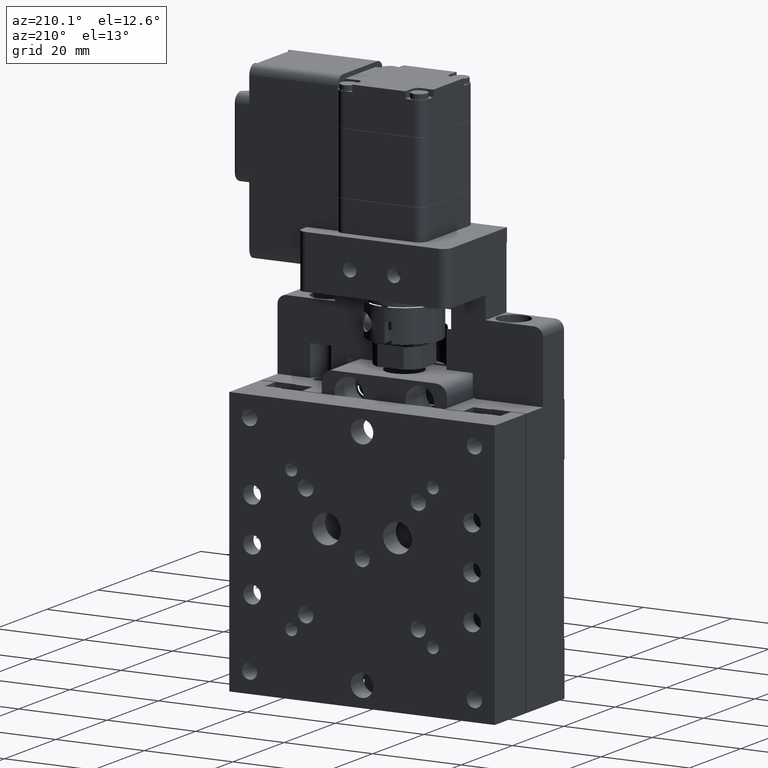
[diagram: clean part render]
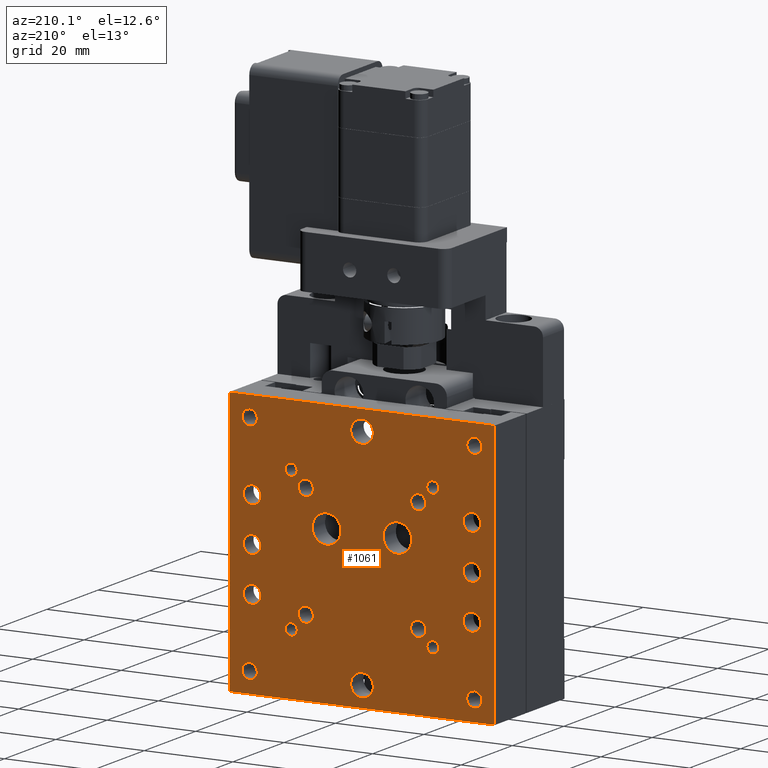
[diagram: same view with one face highlighted and labeled with its STEP entity id]
A machine part, auxiliary view. The second image highlights one B-rep face of the part: STEP entity #1061.
In plain terms, the highlighted planar face has unit normal (0, -1, 0).
Its self-contained STEP definition (entity closure, byte-faithful):
#64 = CARTESIAN_POINT ( 'NONE',  ( 10.10828040119246800, 14.10181245401396000, 49.79999999999999000 ) ) ;
#66 = DIRECTION ( 'NONE',  ( -1.000000000000000000, -1.156482317317871500E-016, 0.0000000000000000000 ) ) ;
#94 = CARTESIAN_POINT ( 'NONE',  ( 22.80828040119247300, 14.10181245401396100, 37.09999999999998700 ) ) ;
#146 = CARTESIAN_POINT ( 'NONE',  ( 27.40828040119247100, 14.10181245401396100, 92.50000000000000000 ) ) ;
#296 = DIRECTION ( 'NONE',  ( -0.0000000000000000000, 1.000000000000000000, -0.0000000000000000000 ) ) ;
#335 = DIRECTION ( 'NONE',  ( 0.0000000000000000000, 0.0000000000000000000, 1.000000000000000000 ) ) ;
#354 = EDGE_CURVE ( 'NONE', #18640, #4693, #12430, .T. ) ;
#380 = DIRECTION ( 'NONE',  ( -0.0000000000000000000, 1.000000000000000000, -0.0000000000000000000 ) ) ;
#394 = CARTESIAN_POINT ( 'NONE',  ( -27.99171959880753100, 14.10181245401395400, 37.09999999999999400 ) ) ;
#438 = AXIS2_PLACEMENT_3D ( 'NONE', #2278, #5836, #9517 ) ;
#485 = EDGE_LOOP ( 'NONE', ( #8663, #18839 ) ) ;
#518 = DIRECTION ( 'NONE',  ( -0.0000000000000000000, 1.000000000000000000, -0.0000000000000000000 ) ) ;
#538 = DIRECTION ( 'NONE',  ( -0.0000000000000000000, 1.000000000000000000, -0.0000000000000000000 ) ) ;
#552 = DIRECTION ( 'NONE',  ( -0.0000000000000000000, 1.000000000000000000, -0.0000000000000000000 ) ) ;
#788 = CIRCLE ( 'NONE', #15092, 2.000000000000001800 ) ;
#799 = ORIENTED_EDGE ( 'NONE', *, *, #22885, .F. ) ;
#804 = FACE_BOUND ( 'NONE', #12947, .T. ) ;
#821 = CARTESIAN_POINT ( 'NONE',  ( 22.25828040119247600, 14.10181245401396100, 52.49999999999999300 ) ) ;
#883 = AXIS2_PLACEMENT_3D ( 'NONE', #15247, #20374, #13442 ) ;
#897 = AXIS2_PLACEMENT_3D ( 'NONE', #9203, #3953, #335 ) ;
#1029 = DIRECTION ( 'NONE',  ( -0.0000000000000000000, 1.000000000000000000, -0.0000000000000000000 ) ) ;
#1059 = CARTESIAN_POINT ( 'NONE',  ( 10.10828040119246800, 14.10181245401396000, 75.19999999999998900 ) ) ;
#1061 = ADVANCED_FACE ( 'NONE', ( #19615, #20179, #21548, #17965, #14903, #15441, #1618, #8534, #14345, #7972, #15163, #19893, #10160, #11850, #3558, #21836, #7721, #2731, #16279, #804, #12107, #6324, #11566, #7158 ), #18908, .F. ) ;
#1078 = VERTEX_POINT ( 'NONE', #10514 ) ;
#1101 = EDGE_CURVE ( 'NONE', #8909, #16919, #7431, .T. ) ;
#1137 = AXIS2_PLACEMENT_3D ( 'NONE', #9031, #2099, #16237 ) ;
#1150 = CARTESIAN_POINT ( 'NONE',  ( -10.59171959880753300, 14.10181245401395600, 67.49999999999998600 ) ) ;
#1174 = VERTEX_POINT ( 'NONE', #14237 ) ;
#1278 = CARTESIAN_POINT ( 'NONE',  ( 22.25828040119247600, 14.10181245401396100, 52.49999999999999300 ) ) ;
#1324 = CIRCLE ( 'NONE', #5032, 1.352549999999994100 ) ;
#1431 = AXIS2_PLACEMENT_3D ( 'NONE', #1707, #3628, #1779 ) ;
#1483 = AXIS2_PLACEMENT_3D ( 'NONE', #22009, #6289, #16795 ) ;
#1542 = DIRECTION ( 'NONE',  ( -0.0000000000000000000, -0.0000000000000000000, -1.000000000000000000 ) ) ;
#1618 = FACE_BOUND ( 'NONE', #3620, .T. ) ;
#1663 = AXIS2_PLACEMENT_3D ( 'NONE', #21785, #380, #2152 ) ;
#1697 = DIRECTION ( 'NONE',  ( 0.0000000000000000000, 0.0000000000000000000, 1.000000000000000000 ) ) ;
#1707 = CARTESIAN_POINT ( 'NONE',  ( -10.59171959880753300, 14.10181245401395600, 67.49999999999998600 ) ) ;
#1779 = DIRECTION ( 'NONE',  ( 0.0000000000000000000, 0.0000000000000000000, 1.000000000000000000 ) ) ;
#1845 = DIRECTION ( 'NONE',  ( -0.0000000000000000000, 1.000000000000000000, -0.0000000000000000000 ) ) ;
#1847 = ORIENTED_EDGE ( 'NONE', *, *, #22073, .F. ) ;
#1865 = AXIS2_PLACEMENT_3D ( 'NONE', #14479, #3889, #12834 ) ;
#1886 = DIRECTION ( 'NONE',  ( -0.0000000000000000000, 1.000000000000000000, -0.0000000000000000000 ) ) ;
#1989 = EDGE_CURVE ( 'NONE', #7228, #6220, #6208, .T. ) ;
#2000 = EDGE_LOOP ( 'NONE', ( #17926, #10627 ) ) ;
#2099 = DIRECTION ( 'NONE',  ( -0.0000000000000000000, 1.000000000000000000, -0.0000000000000000000 ) ) ;
#2140 = ORIENTED_EDGE ( 'NONE', *, *, #22042, .F. ) ;
#2152 = DIRECTION ( 'NONE',  ( 0.0000000000000000000, 0.0000000000000000000, 1.000000000000000000 ) ) ;
#2278 = CARTESIAN_POINT ( 'NONE',  ( 22.25828040119247600, 14.10181245401396100, 62.49999999999999300 ) ) ;
#2289 = DIRECTION ( 'NONE',  ( 0.0000000000000000000, 0.0000000000000000000, 1.000000000000000000 ) ) ;
#2306 = ORIENTED_EDGE ( 'NONE', *, *, #4036, .F. ) ;
#2317 = EDGE_CURVE ( 'NONE', #11113, #18616, #21407, .T. ) ;
#2394 = CARTESIAN_POINT ( 'NONE',  ( -27.44171959880754500, 14.10181245401395400, 64.49999999999998600 ) ) ;
#2421 = CARTESIAN_POINT ( 'NONE',  ( -15.29171959880753000, 14.10181245401395600, 75.19999999999998900 ) ) ;
#2605 = ORIENTED_EDGE ( 'NONE', *, *, #4107, .F. ) ;
#2713 = CARTESIAN_POINT ( 'NONE',  ( 22.25828040119247600, 14.10181245401396100, 54.49999999999999300 ) ) ;
#2715 = CIRCLE ( 'NONE', #7983, 1.727199999999998100 ) ;
#2731 = FACE_BOUND ( 'NONE', #6490, .T. ) ;
#2746 = CIRCLE ( 'NONE', #10319, 1.352549999999994100 ) ;
#2819 = EDGE_CURVE ( 'NONE', #17115, #19973, #15818, .T. ) ;
#2919 = VERTEX_POINT ( 'NONE', #9435 ) ;
#2984 = CARTESIAN_POINT ( 'NONE',  ( 13.40828040119246900, 14.10181245401396000, 46.49999999999999300 ) ) ;
#3006 = EDGE_LOOP ( 'NONE', ( #3567, #9687 ) ) ;
#3054 = CARTESIAN_POINT ( 'NONE',  ( 22.80828040119247300, 14.10181245401396100, 35.37279999999999100 ) ) ;
#3179 = EDGE_CURVE ( 'NONE', #3348, #8885, #6686, .T. ) ;
#3184 = DIRECTION ( 'NONE',  ( 0.0000000000000000000, 0.0000000000000000000, 1.000000000000000000 ) ) ;
#3188 = EDGE_LOOP ( 'NONE', ( #14151, #1847 ) ) ;
#3199 = EDGE_CURVE ( 'NONE', #8885, #3348, #8065, .T. ) ;
#3202 = CARTESIAN_POINT ( 'NONE',  ( -27.99171959880752800, 14.10181245401395400, 87.89999999999999100 ) ) ;
#3223 = CARTESIAN_POINT ( 'NONE',  ( 22.80828040119247300, 14.10181245401396100, 37.09999999999998700 ) ) ;
#3291 = CARTESIAN_POINT ( 'NONE',  ( -27.44171959880754500, 14.10181245401395400, 62.49999999999999300 ) ) ;
#3301 = ORIENTED_EDGE ( 'NONE', *, *, #20282, .F. ) ;
#3348 = VERTEX_POINT ( 'NONE', #20269 ) ;
#3451 = EDGE_LOOP ( 'NONE', ( #10897, #2306 ) ) ;
#3470 = DIRECTION ( 'NONE',  ( -0.0000000000000000000, 1.000000000000000000, -0.0000000000000000000 ) ) ;
#3483 = ORIENTED_EDGE ( 'NONE', *, *, #13727, .F. ) ;
#3493 = DIRECTION ( 'NONE',  ( -0.0000000000000000000, 1.000000000000000000, -0.0000000000000000000 ) ) ;
#3495 = VERTEX_POINT ( 'NONE', #4528 ) ;
#3558 = FACE_BOUND ( 'NONE', #10093, .T. ) ;
#3567 = ORIENTED_EDGE ( 'NONE', *, *, #4620, .F. ) ;
#3600 = EDGE_CURVE ( 'NONE', #9691, #14622, #18313, .T. ) ;
#3620 = EDGE_LOOP ( 'NONE', ( #9164, #17779 ) ) ;
#3628 = DIRECTION ( 'NONE',  ( -0.0000000000000000000, 1.000000000000000000, -0.0000000000000000000 ) ) ;
#3649 = EDGE_CURVE ( 'NONE', #10498, #12712, #10235, .T. ) ;
#3657 = DIRECTION ( 'NONE',  ( -0.0000000000000000000, 1.000000000000000000, -0.0000000000000000000 ) ) ;
#3696 = VERTEX_POINT ( 'NONE', #15531 ) ;
#3733 = CARTESIAN_POINT ( 'NONE',  ( -15.29171959880753000, 14.10181245401395600, 75.19999999999998900 ) ) ;
#3776 = AXIS2_PLACEMENT_3D ( 'NONE', #94, #5568, #9410 ) ;
#3889 = DIRECTION ( 'NONE',  ( -0.0000000000000000000, 1.000000000000000000, -0.0000000000000000000 ) ) ;
#3953 = DIRECTION ( 'NONE',  ( -0.0000000000000000000, 1.000000000000000000, -0.0000000000000000000 ) ) ;
#3983 = CARTESIAN_POINT ( 'NONE',  ( -27.44171959880754500, 14.10181245401395400, 60.50000000000000000 ) ) ;
#4003 = CARTESIAN_POINT ( 'NONE',  ( -18.59171959880752900, 14.10181245401395600, 77.14744999999999200 ) ) ;
#4032 = CARTESIAN_POINT ( 'NONE',  ( 13.40828040119246900, 14.10181245401396000, 77.14744999999999200 ) ) ;
#4034 = CIRCLE ( 'NONE', #22293, 1.727199999999998100 ) ;
#4036 = EDGE_CURVE ( 'NONE', #22049, #2919, #20519, .T. ) ;
#4039 = CARTESIAN_POINT ( 'NONE',  ( -27.44171959880754500, 14.10181245401395400, 52.49999999999999300 ) ) ;
#4060 = CARTESIAN_POINT ( 'NONE',  ( 22.25828040119247600, 14.10181245401396100, 64.49999999999998600 ) ) ;
#4078 = CIRCLE ( 'NONE', #6822, 2.552700000000005100 ) ;
#4107 = EDGE_CURVE ( 'NONE', #11803, #9803, #11083, .T. ) ;
#4150 = DIRECTION ( 'NONE',  ( 0.0000000000000000000, 0.0000000000000000000, 1.000000000000000000 ) ) ;
#4197 = ORIENTED_EDGE ( 'NONE', *, *, #8927, .F. ) ;
#4334 = ORIENTED_EDGE ( 'NONE', *, *, #18304, .F. ) ;
#4339 = EDGE_CURVE ( 'NONE', #9781, #1174, #22419, .T. ) ;
#4443 = CARTESIAN_POINT ( 'NONE',  ( -27.44171959880754500, 14.10181245401395400, 74.50000000000000000 ) ) ;
#4496 = EDGE_CURVE ( 'NONE', #9803, #11803, #21039, .T. ) ;
#4522 = EDGE_LOOP ( 'NONE', ( #18905, #15267 ) ) ;
#4528 = CARTESIAN_POINT ( 'NONE',  ( -27.99171959880753100, 14.10181245401395400, 35.37279999999999800 ) ) ;
#4539 = CARTESIAN_POINT ( 'NONE',  ( -2.591719598807531900, 14.10181245401395800, 87.89999999999999100 ) ) ;
#4569 = CARTESIAN_POINT ( 'NONE',  ( -15.29171959880753000, 14.10181245401395600, 51.52719999999998600 ) ) ;
#4620 = EDGE_CURVE ( 'NONE', #18780, #15789, #4959, .T. ) ;
#4628 = CIRCLE ( 'NONE', #20659, 1.999999999999994900 ) ;
#4693 = VERTEX_POINT ( 'NONE', #5772 ) ;
#4873 = EDGE_CURVE ( 'NONE', #14048, #9311, #19642, .T. ) ;
#4936 = CIRCLE ( 'NONE', #15495, 2.552700000000005100 ) ;
#4959 = CIRCLE ( 'NONE', #13417, 1.727199999999998100 ) ;
#4975 = DIRECTION ( 'NONE',  ( 0.0000000000000000000, 0.0000000000000000000, 1.000000000000000000 ) ) ;
#5026 = EDGE_CURVE ( 'NONE', #17299, #16556, #4936, .T. ) ;
#5032 = AXIS2_PLACEMENT_3D ( 'NONE', #15309, #1029, #13297 ) ;
#5220 = CIRCLE ( 'NONE', #883, 1.727199999999998100 ) ;
#5253 = AXIS2_PLACEMENT_3D ( 'NONE', #1059, #18912, #15269 ) ;
#5354 = VERTEX_POINT ( 'NONE', #9504 ) ;
#5363 = CARTESIAN_POINT ( 'NONE',  ( 27.40828040119247100, 14.10181245401396100, 92.50000000000000000 ) ) ;
#5392 = CARTESIAN_POINT ( 'NONE',  ( 22.25828040119247600, 14.10181245401396100, 72.50000000000000000 ) ) ;
#5568 = DIRECTION ( 'NONE',  ( -0.0000000000000000000, 1.000000000000000000, -0.0000000000000000000 ) ) ;
#5687 = EDGE_LOOP ( 'NONE', ( #9300, #7652 ) ) ;
#5706 = CARTESIAN_POINT ( 'NONE',  ( -27.99171959880752800, 14.10181245401395400, 87.89999999999999100 ) ) ;
#5772 = CARTESIAN_POINT ( 'NONE',  ( -27.44171959880754500, 14.10181245401395400, 50.49999999999998600 ) ) ;
#5785 = AXIS2_PLACEMENT_3D ( 'NONE', #12036, #6646, #10257 ) ;
#5801 = VERTEX_POINT ( 'NONE', #21964 ) ;
#5836 = DIRECTION ( 'NONE',  ( -0.0000000000000000000, 1.000000000000000000, -0.0000000000000000000 ) ) ;
#5938 = VECTOR ( 'NONE', #1542, 1000.000000000000000 ) ;
#6012 = AXIS2_PLACEMENT_3D ( 'NONE', #64, #1845, #1697 ) ;
#6074 = DIRECTION ( 'NONE',  ( -0.0000000000000000000, 1.000000000000000000, -0.0000000000000000000 ) ) ;
#6208 = CIRCLE ( 'NONE', #10263, 1.999999999999994900 ) ;
#6211 = EDGE_CURVE ( 'NONE', #17255, #18426, #9026, .T. ) ;
#6220 = VERTEX_POINT ( 'NONE', #3983 ) ;
#6289 = DIRECTION ( 'NONE',  ( -0.0000000000000000000, 1.000000000000000000, -0.0000000000000000000 ) ) ;
#6322 = LINE ( 'NONE', #21191, #16523 ) ;
#6324 = FACE_BOUND ( 'NONE', #4522, .T. ) ;
#6375 = EDGE_CURVE ( 'NONE', #11925, #16609, #788, .T. ) ;
#6408 = EDGE_LOOP ( 'NONE', ( #17132, #10126 ) ) ;
#6425 = DIRECTION ( 'NONE',  ( 0.0000000000000000000, 0.0000000000000000000, 1.000000000000000000 ) ) ;
#6435 = DIRECTION ( 'NONE',  ( -0.0000000000000000000, 1.000000000000000000, -0.0000000000000000000 ) ) ;
#6482 = AXIS2_PLACEMENT_3D ( 'NONE', #20721, #11655, #17217 ) ;
#6490 = EDGE_LOOP ( 'NONE', ( #15727, #15683 ) ) ;
#6492 = AXIS2_PLACEMENT_3D ( 'NONE', #11086, #518, #2289 ) ;
#6499 = ORIENTED_EDGE ( 'NONE', *, *, #20316, .F. ) ;
#6528 = CARTESIAN_POINT ( 'NONE',  ( 22.80828040119248000, 14.10181245401396100, 89.62719999999997400 ) ) ;
#6554 = CARTESIAN_POINT ( 'NONE',  ( -2.591719598807531900, 14.10181245401395800, 64.22719999999999600 ) ) ;
#6593 = DIRECTION ( 'NONE',  ( 1.156482317317871500E-016, -1.000000000000000000, 0.0000000000000000000 ) ) ;
#6601 = EDGE_CURVE ( 'NONE', #3696, #20960, #2715, .T. ) ;
#6646 = DIRECTION ( 'NONE',  ( -0.0000000000000000000, 1.000000000000000000, -0.0000000000000000000 ) ) ;
#6686 = CIRCLE ( 'NONE', #16950, 1.352550000000001000 ) ;
#6722 = ORIENTED_EDGE ( 'NONE', *, *, #3199, .F. ) ;
#6746 = DIRECTION ( 'NONE',  ( -0.0000000000000000000, 1.000000000000000000, -0.0000000000000000000 ) ) ;
#6775 = VERTEX_POINT ( 'NONE', #18126 ) ;
#6800 = EDGE_CURVE ( 'NONE', #22715, #5354, #20689, .T. ) ;
#6814 = CARTESIAN_POINT ( 'NONE',  ( -15.29171959880753000, 14.10181245401395600, 49.79999999999999000 ) ) ;
#6822 = AXIS2_PLACEMENT_3D ( 'NONE', #4539, #18534, #9916 ) ;
#6847 = DIRECTION ( 'NONE',  ( 0.0000000000000000000, 0.0000000000000000000, 1.000000000000000000 ) ) ;
#6863 = CARTESIAN_POINT ( 'NONE',  ( -18.59171959880752900, 14.10181245401395600, 47.85254999999999400 ) ) ;
#7092 = AXIS2_PLACEMENT_3D ( 'NONE', #3733, #17585, #21239 ) ;
#7135 = AXIS2_PLACEMENT_3D ( 'NONE', #22675, #3470, #15832 ) ;
#7158 = FACE_OUTER_BOUND ( 'NONE', #18705, .T. ) ;
#7168 = AXIS2_PLACEMENT_3D ( 'NONE', #22745, #13890, #11961 ) ;
#7228 = VERTEX_POINT ( 'NONE', #2394 ) ;
#7278 = ORIENTED_EDGE ( 'NONE', *, *, #7592, .F. ) ;
#7395 = DIRECTION ( 'NONE',  ( 0.0000000000000000000, 0.0000000000000000000, 1.000000000000000000 ) ) ;
#7402 = CIRCLE ( 'NONE', #7168, 1.727200000000005200 ) ;
#7415 = AXIS2_PLACEMENT_3D ( 'NONE', #5392, #7475, #7395 ) ;
#7431 = LINE ( 'NONE', #5363, #10734 ) ;
#7475 = DIRECTION ( 'NONE',  ( -0.0000000000000000000, 1.000000000000000000, -0.0000000000000000000 ) ) ;
#7541 = CARTESIAN_POINT ( 'NONE',  ( -27.44171959880754500, 14.10181245401395400, 62.49999999999999300 ) ) ;
#7575 = EDGE_CURVE ( 'NONE', #5801, #17363, #10671, .T. ) ;
#7592 = EDGE_CURVE ( 'NONE', #12712, #10498, #15362, .T. ) ;
#7632 = EDGE_LOOP ( 'NONE', ( #12115, #11700 ) ) ;
#7652 = ORIENTED_EDGE ( 'NONE', *, *, #6601, .F. ) ;
#7655 = CIRCLE ( 'NONE', #5785, 2.552699999999998000 ) ;
#7719 = AXIS2_PLACEMENT_3D ( 'NONE', #12456, #1886, #21764 ) ;
#7721 = FACE_BOUND ( 'NONE', #3006, .T. ) ;
#7725 = ORIENTED_EDGE ( 'NONE', *, *, #11873, .F. ) ;
#7770 = DIRECTION ( 'NONE',  ( 0.0000000000000000000, 0.0000000000000000000, 1.000000000000000000 ) ) ;
#7972 = FACE_BOUND ( 'NONE', #5687, .T. ) ;
#7983 = AXIS2_PLACEMENT_3D ( 'NONE', #6814, #8444, #10427 ) ;
#8065 = CIRCLE ( 'NONE', #1865, 1.352550000000001000 ) ;
#8279 = CARTESIAN_POINT ( 'NONE',  ( 5.408280401192471700, 14.10181245401396000, 70.75000000000000000 ) ) ;
#8294 = EDGE_CURVE ( 'NONE', #14622, #9691, #15022, .T. ) ;
#8315 = CARTESIAN_POINT ( 'NONE',  ( 10.10828040119246800, 14.10181245401396000, 73.47279999999999200 ) ) ;
#8317 = DIRECTION ( 'NONE',  ( -0.0000000000000000000, 1.000000000000000000, -0.0000000000000000000 ) ) ;
#8348 = DIRECTION ( 'NONE',  ( 0.0000000000000000000, 0.0000000000000000000, 1.000000000000000000 ) ) ;
#8444 = DIRECTION ( 'NONE',  ( -0.0000000000000000000, 1.000000000000000000, -0.0000000000000000000 ) ) ;
#8468 = DIRECTION ( 'NONE',  ( 0.0000000000000000000, 0.0000000000000000000, 1.000000000000000000 ) ) ;
#8534 = FACE_BOUND ( 'NONE', #19879, .T. ) ;
#8621 = DIRECTION ( 'NONE',  ( 0.0000000000000000000, 0.0000000000000000000, 1.000000000000000000 ) ) ;
#8652 = DIRECTION ( 'NONE',  ( -0.0000000000000000000, 1.000000000000000000, -0.0000000000000000000 ) ) ;
#8663 = ORIENTED_EDGE ( 'NONE', *, *, #10368, .F. ) ;
#8853 = CIRCLE ( 'NONE', #6482, 2.552699999999998000 ) ;
#8885 = VERTEX_POINT ( 'NONE', #11583 ) ;
#8909 = VERTEX_POINT ( 'NONE', #17373 ) ;
#8927 = EDGE_CURVE ( 'NONE', #18426, #17255, #13898, .T. ) ;
#8963 = EDGE_CURVE ( 'NONE', #2919, #22049, #9207, .T. ) ;
#9019 = AXIS2_PLACEMENT_3D ( 'NONE', #15969, #296, #16200 ) ;
#9026 = CIRCLE ( 'NONE', #6492, 1.352549999999994100 ) ;
#9031 = CARTESIAN_POINT ( 'NONE',  ( -27.44171959880754500, 14.10181245401395400, 72.50000000000000000 ) ) ;
#9123 = DIRECTION ( 'NONE',  ( -0.0000000000000000000, 1.000000000000000000, -0.0000000000000000000 ) ) ;
#9164 = ORIENTED_EDGE ( 'NONE', *, *, #11198, .F. ) ;
#9179 = EDGE_CURVE ( 'NONE', #20960, #3696, #17486, .T. ) ;
#9203 = CARTESIAN_POINT ( 'NONE',  ( 5.408280401192471700, 14.10181245401396000, 67.49999999999998600 ) ) ;
#9207 = CIRCLE ( 'NONE', #16458, 1.727199999999998100 ) ;
#9259 = DIRECTION ( 'NONE',  ( 0.0000000000000000000, 0.0000000000000000000, 1.000000000000000000 ) ) ;
#9297 = DIRECTION ( 'NONE',  ( -0.0000000000000000000, 1.000000000000000000, -0.0000000000000000000 ) ) ;
#9300 = ORIENTED_EDGE ( 'NONE', *, *, #9179, .F. ) ;
#9311 = VERTEX_POINT ( 'NONE', #18846 ) ;
#9351 = EDGE_LOOP ( 'NONE', ( #22237, #18381 ) ) ;
#9410 = DIRECTION ( 'NONE',  ( 0.0000000000000000000, 0.0000000000000000000, 1.000000000000000000 ) ) ;
#9435 = CARTESIAN_POINT ( 'NONE',  ( 22.80828040119247300, 14.10181245401396100, 38.82719999999998400 ) ) ;
#9504 = CARTESIAN_POINT ( 'NONE',  ( 5.408280401192471700, 14.10181245401396000, 64.24999999999998600 ) ) ;
#9517 = DIRECTION ( 'NONE',  ( 0.0000000000000000000, 0.0000000000000000000, 1.000000000000000000 ) ) ;
#9588 = DIRECTION ( 'NONE',  ( 0.0000000000000000000, 0.0000000000000000000, 1.000000000000000000 ) ) ;
#9687 = ORIENTED_EDGE ( 'NONE', *, *, #19384, .F. ) ;
#9691 = VERTEX_POINT ( 'NONE', #4443 ) ;
#9750 = CARTESIAN_POINT ( 'NONE',  ( -27.44171959880754500, 14.10181245401395400, 72.50000000000000000 ) ) ;
#9781 = VERTEX_POINT ( 'NONE', #18737 ) ;
#9803 = VERTEX_POINT ( 'NONE', #13443 ) ;
#9822 = CARTESIAN_POINT ( 'NONE',  ( 13.40828040119246900, 14.10181245401396000, 78.49999999999998600 ) ) ;
#9916 = DIRECTION ( 'NONE',  ( 0.0000000000000000000, 0.0000000000000000000, 1.000000000000000000 ) ) ;
#9925 = ORIENTED_EDGE ( 'NONE', *, *, #1101, .T. ) ;
#9999 = DIRECTION ( 'NONE',  ( 0.0000000000000000000, 0.0000000000000000000, 1.000000000000000000 ) ) ;
#10093 = EDGE_LOOP ( 'NONE', ( #12493, #12042 ) ) ;
#10126 = ORIENTED_EDGE ( 'NONE', *, *, #15140, .F. ) ;
#10160 = FACE_BOUND ( 'NONE', #3188, .T. ) ;
#10235 = CIRCLE ( 'NONE', #15932, 2.000000000000001800 ) ;
#10257 = DIRECTION ( 'NONE',  ( 0.0000000000000000000, 0.0000000000000000000, 1.000000000000000000 ) ) ;
#10263 = AXIS2_PLACEMENT_3D ( 'NONE', #3291, #21014, #6847 ) ;
#10313 = DIRECTION ( 'NONE',  ( 0.0000000000000000000, 0.0000000000000000000, 1.000000000000000000 ) ) ;
#10319 = AXIS2_PLACEMENT_3D ( 'NONE', #9822, #6435, #18815 ) ;
#10368 = EDGE_CURVE ( 'NONE', #16997, #11073, #8853, .T. ) ;
#10407 = CIRCLE ( 'NONE', #21504, 1.727199999999998100 ) ;
#10427 = DIRECTION ( 'NONE',  ( 0.0000000000000000000, 0.0000000000000000000, 1.000000000000000000 ) ) ;
#10487 = CARTESIAN_POINT ( 'NONE',  ( -32.59171959880753600, 14.10181245401395400, 92.50000000000000000 ) ) ;
#10498 = VERTEX_POINT ( 'NONE', #13721 ) ;
#10514 = CARTESIAN_POINT ( 'NONE',  ( -27.99171959880753100, 14.10181245401395400, 38.82719999999999100 ) ) ;
#10627 = ORIENTED_EDGE ( 'NONE', *, *, #15884, .F. ) ;
#10656 = CARTESIAN_POINT ( 'NONE',  ( -32.59171959880753600, 14.10181245401395400, 32.49999999999999300 ) ) ;
#10671 = CIRCLE ( 'NONE', #9019, 1.999999999999994900 ) ;
#10734 = VECTOR ( 'NONE', #14088, 1000.000000000000000 ) ;
#10757 = ORIENTED_EDGE ( 'NONE', *, *, #7575, .F. ) ;
#10771 = ORIENTED_EDGE ( 'NONE', *, *, #15240, .T. ) ;
#10897 = ORIENTED_EDGE ( 'NONE', *, *, #8963, .F. ) ;
#10926 = ORIENTED_EDGE ( 'NONE', *, *, #6211, .F. ) ;
#10986 = CIRCLE ( 'NONE', #20339, 1.727199999999998100 ) ;
#11073 = VERTEX_POINT ( 'NONE', #14008 ) ;
#11083 = CIRCLE ( 'NONE', #1431, 3.250000000000002700 ) ;
#11086 = CARTESIAN_POINT ( 'NONE',  ( -18.59171959880752900, 14.10181245401395600, 78.49999999999998600 ) ) ;
#11113 = VERTEX_POINT ( 'NONE', #12842 ) ;
#11198 = EDGE_CURVE ( 'NONE', #13931, #6775, #19075, .T. ) ;
#11245 = CARTESIAN_POINT ( 'NONE',  ( 27.40828040119247100, 14.10181245401396100, 32.49999999999999300 ) ) ;
#11265 = EDGE_CURVE ( 'NONE', #4693, #18640, #14627, .T. ) ;
#11547 = VERTEX_POINT ( 'NONE', #10656 ) ;
#11566 = FACE_BOUND ( 'NONE', #16665, .T. ) ;
#11583 = CARTESIAN_POINT ( 'NONE',  ( 13.40828040119246900, 14.10181245401396000, 45.14744999999999200 ) ) ;
#11655 = DIRECTION ( 'NONE',  ( -0.0000000000000000000, 1.000000000000000000, -0.0000000000000000000 ) ) ;
#11700 = ORIENTED_EDGE ( 'NONE', *, *, #11265, .F. ) ;
#11771 = CARTESIAN_POINT ( 'NONE',  ( 5.408280401192471700, 14.10181245401396000, 67.49999999999998600 ) ) ;
#11803 = VERTEX_POINT ( 'NONE', #20251 ) ;
#11815 = DIRECTION ( 'NONE',  ( -0.0000000000000000000, 1.000000000000000000, -0.0000000000000000000 ) ) ;
#11850 = FACE_BOUND ( 'NONE', #485, .T. ) ;
#11873 = EDGE_CURVE ( 'NONE', #18569, #17921, #1324, .T. ) ;
#11925 = VERTEX_POINT ( 'NONE', #13522 ) ;
#11937 = AXIS2_PLACEMENT_3D ( 'NONE', #20082, #6074, #13013 ) ;
#11961 = DIRECTION ( 'NONE',  ( 0.0000000000000000000, 0.0000000000000000000, 1.000000000000000000 ) ) ;
#12036 = CARTESIAN_POINT ( 'NONE',  ( -2.591719598807531900, 14.10181245401395800, 37.09999999999999400 ) ) ;
#12042 = ORIENTED_EDGE ( 'NONE', *, *, #12887, .F. ) ;
#12102 = DIRECTION ( 'NONE',  ( 0.0000000000000000000, 0.0000000000000000000, 1.000000000000000000 ) ) ;
#12107 = FACE_BOUND ( 'NONE', #20168, .T. ) ;
#12115 = ORIENTED_EDGE ( 'NONE', *, *, #354, .F. ) ;
#12158 = DIRECTION ( 'NONE',  ( -0.0000000000000000000, 1.000000000000000000, -0.0000000000000000000 ) ) ;
#12182 = DIRECTION ( 'NONE',  ( -0.0000000000000000000, 1.000000000000000000, -0.0000000000000000000 ) ) ;
#12272 = EDGE_CURVE ( 'NONE', #3495, #1078, #10407, .T. ) ;
#12300 = CARTESIAN_POINT ( 'NONE',  ( 10.10828040119246800, 14.10181245401396000, 48.07279999999999400 ) ) ;
#12430 = CIRCLE ( 'NONE', #17362, 2.000000000000001800 ) ;
#12456 = CARTESIAN_POINT ( 'NONE',  ( -2.591719598807531900, 14.10181245401395800, 62.49999999999999300 ) ) ;
#12493 = ORIENTED_EDGE ( 'NONE', *, *, #5026, .F. ) ;
#12564 = CARTESIAN_POINT ( 'NONE',  ( 10.10828040119246800, 14.10181245401396000, 51.52719999999998600 ) ) ;
#12712 = VERTEX_POINT ( 'NONE', #19778 ) ;
#12751 = EDGE_CURVE ( 'NONE', #19973, #17115, #10986, .T. ) ;
#12755 = DIRECTION ( 'NONE',  ( 0.0000000000000000000, 0.0000000000000000000, 1.000000000000000000 ) ) ;
#12834 = DIRECTION ( 'NONE',  ( 0.0000000000000000000, 0.0000000000000000000, 1.000000000000000000 ) ) ;
#12842 = CARTESIAN_POINT ( 'NONE',  ( 10.10828040119246800, 14.10181245401396000, 76.92719999999998500 ) ) ;
#12887 = EDGE_CURVE ( 'NONE', #16556, #17299, #4078, .T. ) ;
#12947 = EDGE_LOOP ( 'NONE', ( #7725, #6499 ) ) ;
#13013 = DIRECTION ( 'NONE',  ( 0.0000000000000000000, 0.0000000000000000000, 1.000000000000000000 ) ) ;
#13020 = DIRECTION ( 'NONE',  ( -0.0000000000000000000, 1.000000000000000000, -0.0000000000000000000 ) ) ;
#13220 = AXIS2_PLACEMENT_3D ( 'NONE', #20842, #6593, #18975 ) ;
#13259 = AXIS2_PLACEMENT_3D ( 'NONE', #2421, #14777, #9588 ) ;
#13297 = DIRECTION ( 'NONE',  ( 0.0000000000000000000, 0.0000000000000000000, 1.000000000000000000 ) ) ;
#13334 = CARTESIAN_POINT ( 'NONE',  ( 13.40828040119246900, 14.10181245401396000, 79.85254999999997900 ) ) ;
#13417 = AXIS2_PLACEMENT_3D ( 'NONE', #3202, #12158, #8468 ) ;
#13433 = ORIENTED_EDGE ( 'NONE', *, *, #20247, .F. ) ;
#13442 = DIRECTION ( 'NONE',  ( 0.0000000000000000000, 0.0000000000000000000, 1.000000000000000000 ) ) ;
#13443 = CARTESIAN_POINT ( 'NONE',  ( -10.59171959880753300, 14.10181245401395600, 70.75000000000000000 ) ) ;
#13446 = DIRECTION ( 'NONE',  ( 0.0000000000000000000, 0.0000000000000000000, 1.000000000000000000 ) ) ;
#13522 = CARTESIAN_POINT ( 'NONE',  ( 22.25828040119247600, 14.10181245401396100, 50.49999999999998600 ) ) ;
#13600 = EDGE_CURVE ( 'NONE', #9311, #14048, #16202, .T. ) ;
#13620 = AXIS2_PLACEMENT_3D ( 'NONE', #11771, #6746, #13626 ) ;
#13626 = DIRECTION ( 'NONE',  ( 0.0000000000000000000, 0.0000000000000000000, 1.000000000000000000 ) ) ;
#13721 = CARTESIAN_POINT ( 'NONE',  ( 22.25828040119247600, 14.10181245401396100, 74.50000000000000000 ) ) ;
#13727 = EDGE_CURVE ( 'NONE', #8909, #22761, #20110, .T. ) ;
#13838 = CARTESIAN_POINT ( 'NONE',  ( -27.44171959880754500, 14.10181245401395400, 70.50000000000000000 ) ) ;
#13890 = DIRECTION ( 'NONE',  ( -0.0000000000000000000, 1.000000000000000000, -0.0000000000000000000 ) ) ;
#13898 = CIRCLE ( 'NONE', #18104, 1.352549999999994100 ) ;
#13931 = VERTEX_POINT ( 'NONE', #6554 ) ;
#13932 = CARTESIAN_POINT ( 'NONE',  ( 22.80828040119248000, 14.10181245401396100, 86.17279999999998100 ) ) ;
#14008 = CARTESIAN_POINT ( 'NONE',  ( -2.591719598807531400, 14.10181245401395800, 34.54729999999999300 ) ) ;
#14048 = VERTEX_POINT ( 'NONE', #6863 ) ;
#14079 = ORIENTED_EDGE ( 'NONE', *, *, #3179, .F. ) ;
#14088 = DIRECTION ( 'NONE',  ( -0.0000000000000000000, -0.0000000000000000000, -1.000000000000000000 ) ) ;
#14151 = ORIENTED_EDGE ( 'NONE', *, *, #6800, .F. ) ;
#14237 = CARTESIAN_POINT ( 'NONE',  ( -15.29171959880753000, 14.10181245401395600, 76.92719999999998500 ) ) ;
#14287 = DIRECTION ( 'NONE',  ( -1.000000000000000000, -1.156482317317871500E-016, 0.0000000000000000000 ) ) ;
#14335 = CARTESIAN_POINT ( 'NONE',  ( -27.99171959880752800, 14.10181245401395400, 86.17279999999999500 ) ) ;
#14345 = FACE_BOUND ( 'NONE', #9351, .T. ) ;
#14479 = CARTESIAN_POINT ( 'NONE',  ( 13.40828040119246900, 14.10181245401396000, 46.49999999999999300 ) ) ;
#14492 = CARTESIAN_POINT ( 'NONE',  ( -2.591719598807531900, 14.10181245401395800, 90.45269999999999300 ) ) ;
#14622 = VERTEX_POINT ( 'NONE', #13838 ) ;
#14627 = CIRCLE ( 'NONE', #1483, 2.000000000000001800 ) ;
#14755 = CARTESIAN_POINT ( 'NONE',  ( -27.99171959880753100, 14.10181245401395400, 37.09999999999999400 ) ) ;
#14777 = DIRECTION ( 'NONE',  ( -0.0000000000000000000, 1.000000000000000000, -0.0000000000000000000 ) ) ;
#14790 = DIRECTION ( 'NONE',  ( 0.0000000000000000000, 0.0000000000000000000, 1.000000000000000000 ) ) ;
#14811 = AXIS2_PLACEMENT_3D ( 'NONE', #1278, #20691, #4975 ) ;
#14843 = CIRCLE ( 'NONE', #7092, 1.727199999999998100 ) ;
#14903 = FACE_BOUND ( 'NONE', #15079, .T. ) ;
#15022 = CIRCLE ( 'NONE', #17643, 2.000000000000001800 ) ;
#15070 = LINE ( 'NONE', #22582, #5938 ) ;
#15079 = EDGE_LOOP ( 'NONE', ( #13433, #10757 ) ) ;
#15088 = DIRECTION ( 'NONE',  ( -0.0000000000000000000, 1.000000000000000000, -0.0000000000000000000 ) ) ;
#15092 = AXIS2_PLACEMENT_3D ( 'NONE', #821, #20228, #14790 ) ;
#15134 = EDGE_CURVE ( 'NONE', #6775, #13931, #7402, .T. ) ;
#15140 = EDGE_CURVE ( 'NONE', #18616, #11113, #4034, .T. ) ;
#15151 = EDGE_CURVE ( 'NONE', #22761, #11547, #15070, .T. ) ;
#15163 = FACE_BOUND ( 'NONE', #6408, .T. ) ;
#15218 = ORIENTED_EDGE ( 'NONE', *, *, #4496, .F. ) ;
#15240 = EDGE_CURVE ( 'NONE', #16919, #11547, #6322, .T. ) ;
#15247 = CARTESIAN_POINT ( 'NONE',  ( 10.10828040119246800, 14.10181245401396000, 49.79999999999999000 ) ) ;
#15267 = ORIENTED_EDGE ( 'NONE', *, *, #13600, .F. ) ;
#15269 = DIRECTION ( 'NONE',  ( 0.0000000000000000000, 0.0000000000000000000, 1.000000000000000000 ) ) ;
#15309 = CARTESIAN_POINT ( 'NONE',  ( 13.40828040119246900, 14.10181245401396000, 78.49999999999998600 ) ) ;
#15362 = CIRCLE ( 'NONE', #7415, 2.000000000000001800 ) ;
#15441 = FACE_BOUND ( 'NONE', #18860, .T. ) ;
#15454 = ORIENTED_EDGE ( 'NONE', *, *, #12272, .F. ) ;
#15495 = AXIS2_PLACEMENT_3D ( 'NONE', #20912, #3493, #3184 ) ;
#15531 = CARTESIAN_POINT ( 'NONE',  ( -15.29171959880753000, 14.10181245401395600, 48.07279999999999400 ) ) ;
#15591 = DIRECTION ( 'NONE',  ( -0.0000000000000000000, 1.000000000000000000, -0.0000000000000000000 ) ) ;
#15683 = ORIENTED_EDGE ( 'NONE', *, *, #12751, .F. ) ;
#15727 = ORIENTED_EDGE ( 'NONE', *, *, #2819, .F. ) ;
#15744 = CARTESIAN_POINT ( 'NONE',  ( -18.59171959880752900, 14.10181245401395600, 78.49999999999998600 ) ) ;
#15789 = VERTEX_POINT ( 'NONE', #14335 ) ;
#15818 = CIRCLE ( 'NONE', #20542, 1.727199999999998100 ) ;
#15832 = DIRECTION ( 'NONE',  ( 0.0000000000000000000, 0.0000000000000000000, 1.000000000000000000 ) ) ;
#15852 = AXIS2_PLACEMENT_3D ( 'NONE', #394, #552, #9259 ) ;
#15884 = EDGE_CURVE ( 'NONE', #6220, #7228, #4628, .T. ) ;
#15932 = AXIS2_PLACEMENT_3D ( 'NONE', #16989, #11815, #6425 ) ;
#15969 = CARTESIAN_POINT ( 'NONE',  ( 22.25828040119247600, 14.10181245401396100, 62.49999999999999300 ) ) ;
#16085 = ORIENTED_EDGE ( 'NONE', *, *, #3649, .F. ) ;
#16200 = DIRECTION ( 'NONE',  ( 0.0000000000000000000, 0.0000000000000000000, 1.000000000000000000 ) ) ;
#16202 = CIRCLE ( 'NONE', #7135, 1.352550000000001000 ) ;
#16237 = DIRECTION ( 'NONE',  ( 0.0000000000000000000, 0.0000000000000000000, 1.000000000000000000 ) ) ;
#16279 = FACE_BOUND ( 'NONE', #3451, .T. ) ;
#16359 = CARTESIAN_POINT ( 'NONE',  ( 22.80828040119248000, 14.10181245401396100, 87.89999999999997700 ) ) ;
#16413 = ORIENTED_EDGE ( 'NONE', *, *, #3600, .F. ) ;
#16458 = AXIS2_PLACEMENT_3D ( 'NONE', #3223, #15591, #12102 ) ;
#16523 = VECTOR ( 'NONE', #66, 1000.000000000000000 ) ;
#16556 = VERTEX_POINT ( 'NONE', #18412 ) ;
#16606 = ORIENTED_EDGE ( 'NONE', *, *, #15151, .F. ) ;
#16609 = VERTEX_POINT ( 'NONE', #2713 ) ;
#16665 = EDGE_LOOP ( 'NONE', ( #10926, #4197 ) ) ;
#16795 = DIRECTION ( 'NONE',  ( 0.0000000000000000000, 0.0000000000000000000, 1.000000000000000000 ) ) ;
#16919 = VERTEX_POINT ( 'NONE', #11245 ) ;
#16950 = AXIS2_PLACEMENT_3D ( 'NONE', #2984, #3657, #8621 ) ;
#16989 = CARTESIAN_POINT ( 'NONE',  ( 22.25828040119247600, 14.10181245401396100, 72.50000000000000000 ) ) ;
#16997 = VERTEX_POINT ( 'NONE', #17592 ) ;
#17014 = CIRCLE ( 'NONE', #13620, 3.250000000000002700 ) ;
#17105 = EDGE_LOOP ( 'NONE', ( #16413, #22423 ) ) ;
#17115 = VERTEX_POINT ( 'NONE', #6528 ) ;
#17132 = ORIENTED_EDGE ( 'NONE', *, *, #2317, .F. ) ;
#17217 = DIRECTION ( 'NONE',  ( 0.0000000000000000000, 0.0000000000000000000, 1.000000000000000000 ) ) ;
#17255 = VERTEX_POINT ( 'NONE', #19449 ) ;
#17299 = VERTEX_POINT ( 'NONE', #14492 ) ;
#17362 = AXIS2_PLACEMENT_3D ( 'NONE', #4039, #19753, #12755 ) ;
#17363 = VERTEX_POINT ( 'NONE', #4060 ) ;
#17373 = CARTESIAN_POINT ( 'NONE',  ( 27.40828040119247100, 14.10181245401396100, 92.50000000000000000 ) ) ;
#17486 = CIRCLE ( 'NONE', #1663, 1.727199999999998100 ) ;
#17585 = DIRECTION ( 'NONE',  ( -0.0000000000000000000, 1.000000000000000000, -0.0000000000000000000 ) ) ;
#17592 = CARTESIAN_POINT ( 'NONE',  ( -2.591719598807531900, 14.10181245401395800, 39.65269999999998900 ) ) ;
#17643 = AXIS2_PLACEMENT_3D ( 'NONE', #9750, #15088, #13446 ) ;
#17779 = ORIENTED_EDGE ( 'NONE', *, *, #15134, .F. ) ;
#17904 = CARTESIAN_POINT ( 'NONE',  ( -27.99171959880752800, 14.10181245401395400, 89.62719999999998800 ) ) ;
#17921 = VERTEX_POINT ( 'NONE', #4032 ) ;
#17926 = ORIENTED_EDGE ( 'NONE', *, *, #1989, .F. ) ;
#17965 = FACE_BOUND ( 'NONE', #20985, .T. ) ;
#18016 = CIRCLE ( 'NONE', #19216, 1.727199999999998100 ) ;
#18104 = AXIS2_PLACEMENT_3D ( 'NONE', #15744, #12182, #10313 ) ;
#18114 = DIRECTION ( 'NONE',  ( -0.0000000000000000000, 1.000000000000000000, -0.0000000000000000000 ) ) ;
#18126 = CARTESIAN_POINT ( 'NONE',  ( -2.591719598807531900, 14.10181245401395800, 60.77279999999999700 ) ) ;
#18184 = VECTOR ( 'NONE', #14287, 1000.000000000000000 ) ;
#18258 = DIRECTION ( 'NONE',  ( 0.0000000000000000000, 0.0000000000000000000, 1.000000000000000000 ) ) ;
#18270 = CARTESIAN_POINT ( 'NONE',  ( 22.80828040119248000, 14.10181245401396100, 87.89999999999997700 ) ) ;
#18304 = EDGE_CURVE ( 'NONE', #22846, #19980, #18892, .T. ) ;
#18313 = CIRCLE ( 'NONE', #1137, 2.000000000000001800 ) ;
#18381 = ORIENTED_EDGE ( 'NONE', *, *, #4339, .F. ) ;
#18412 = CARTESIAN_POINT ( 'NONE',  ( -2.591719598807531400, 14.10181245401395800, 85.34729999999999000 ) ) ;
#18426 = VERTEX_POINT ( 'NONE', #4003 ) ;
#18534 = DIRECTION ( 'NONE',  ( -0.0000000000000000000, 1.000000000000000000, -0.0000000000000000000 ) ) ;
#18569 = VERTEX_POINT ( 'NONE', #13334 ) ;
#18616 = VERTEX_POINT ( 'NONE', #8315 ) ;
#18640 = VERTEX_POINT ( 'NONE', #22553 ) ;
#18705 = EDGE_LOOP ( 'NONE', ( #9925, #10771, #16606, #3483 ) ) ;
#18737 = CARTESIAN_POINT ( 'NONE',  ( -15.29171959880753000, 14.10181245401395600, 73.47279999999999200 ) ) ;
#18762 = CIRCLE ( 'NONE', #14811, 2.000000000000001800 ) ;
#18771 = AXIS2_PLACEMENT_3D ( 'NONE', #1150, #8317, #9999 ) ;
#18780 = VERTEX_POINT ( 'NONE', #17904 ) ;
#18815 = DIRECTION ( 'NONE',  ( 0.0000000000000000000, 0.0000000000000000000, 1.000000000000000000 ) ) ;
#18839 = ORIENTED_EDGE ( 'NONE', *, *, #22656, .F. ) ;
#18846 = CARTESIAN_POINT ( 'NONE',  ( -18.59171959880752900, 14.10181245401395600, 45.14744999999999200 ) ) ;
#18860 = EDGE_LOOP ( 'NONE', ( #2140, #20416 ) ) ;
#18892 = CIRCLE ( 'NONE', #6012, 1.727199999999998100 ) ;
#18905 = ORIENTED_EDGE ( 'NONE', *, *, #4873, .F. ) ;
#18908 = PLANE ( 'NONE',  #13220 ) ;
#18912 = DIRECTION ( 'NONE',  ( -0.0000000000000000000, 1.000000000000000000, -0.0000000000000000000 ) ) ;
#18975 = DIRECTION ( 'NONE',  ( 1.000000000000000000, 1.156482317317871500E-016, 0.0000000000000000000 ) ) ;
#19075 = CIRCLE ( 'NONE', #7719, 1.727200000000005200 ) ;
#19216 = AXIS2_PLACEMENT_3D ( 'NONE', #5706, #538, #21480 ) ;
#19235 = CARTESIAN_POINT ( 'NONE',  ( 10.10828040119246800, 14.10181245401396000, 75.19999999999998900 ) ) ;
#19384 = EDGE_CURVE ( 'NONE', #15789, #18780, #18016, .T. ) ;
#19449 = CARTESIAN_POINT ( 'NONE',  ( -18.59171959880752900, 14.10181245401395600, 79.85254999999997900 ) ) ;
#19615 = FACE_BOUND ( 'NONE', #7632, .T. ) ;
#19642 = CIRCLE ( 'NONE', #11937, 1.352550000000001000 ) ;
#19753 = DIRECTION ( 'NONE',  ( -0.0000000000000000000, 1.000000000000000000, -0.0000000000000000000 ) ) ;
#19778 = CARTESIAN_POINT ( 'NONE',  ( 22.25828040119247600, 14.10181245401396100, 70.50000000000000000 ) ) ;
#19879 = EDGE_LOOP ( 'NONE', ( #4334, #3301 ) ) ;
#19893 = FACE_BOUND ( 'NONE', #21188, .T. ) ;
#19973 = VERTEX_POINT ( 'NONE', #13932 ) ;
#19980 = VERTEX_POINT ( 'NONE', #12300 ) ;
#20082 = CARTESIAN_POINT ( 'NONE',  ( -18.59171959880752900, 14.10181245401395600, 46.49999999999999300 ) ) ;
#20110 = LINE ( 'NONE', #146, #18184 ) ;
#20168 = EDGE_LOOP ( 'NONE', ( #14079, #6722 ) ) ;
#20179 = FACE_BOUND ( 'NONE', #2000, .T. ) ;
#20228 = DIRECTION ( 'NONE',  ( -0.0000000000000000000, 1.000000000000000000, -0.0000000000000000000 ) ) ;
#20247 = EDGE_CURVE ( 'NONE', #17363, #5801, #20464, .T. ) ;
#20251 = CARTESIAN_POINT ( 'NONE',  ( -10.59171959880753300, 14.10181245401395600, 64.24999999999998600 ) ) ;
#20269 = CARTESIAN_POINT ( 'NONE',  ( 13.40828040119246900, 14.10181245401396000, 47.85254999999999400 ) ) ;
#20282 = EDGE_CURVE ( 'NONE', #19980, #22846, #5220, .T. ) ;
#20316 = EDGE_CURVE ( 'NONE', #17921, #18569, #2746, .T. ) ;
#20339 = AXIS2_PLACEMENT_3D ( 'NONE', #16359, #13020, #4150 ) ;
#20374 = DIRECTION ( 'NONE',  ( -0.0000000000000000000, 1.000000000000000000, -0.0000000000000000000 ) ) ;
#20416 = ORIENTED_EDGE ( 'NONE', *, *, #6375, .F. ) ;
#20464 = CIRCLE ( 'NONE', #438, 1.999999999999994900 ) ;
#20519 = CIRCLE ( 'NONE', #3776, 1.727199999999998100 ) ;
#20542 = AXIS2_PLACEMENT_3D ( 'NONE', #18270, #9123, #21744 ) ;
#20659 = AXIS2_PLACEMENT_3D ( 'NONE', #7541, #9297, #7770 ) ;
#20689 = CIRCLE ( 'NONE', #897, 3.250000000000002700 ) ;
#20691 = DIRECTION ( 'NONE',  ( -0.0000000000000000000, 1.000000000000000000, -0.0000000000000000000 ) ) ;
#20721 = CARTESIAN_POINT ( 'NONE',  ( -2.591719598807531900, 14.10181245401395800, 37.09999999999999400 ) ) ;
#20842 = CARTESIAN_POINT ( 'NONE',  ( 27.40828040119247100, 14.10181245401396100, 92.50000000000000000 ) ) ;
#20912 = CARTESIAN_POINT ( 'NONE',  ( -2.591719598807531900, 14.10181245401395800, 87.89999999999999100 ) ) ;
#20960 = VERTEX_POINT ( 'NONE', #4569 ) ;
#20985 = EDGE_LOOP ( 'NONE', ( #16085, #7278 ) ) ;
#21014 = DIRECTION ( 'NONE',  ( -0.0000000000000000000, 1.000000000000000000, -0.0000000000000000000 ) ) ;
#21039 = CIRCLE ( 'NONE', #18771, 3.250000000000002700 ) ;
#21188 = EDGE_LOOP ( 'NONE', ( #15218, #2605 ) ) ;
#21191 = CARTESIAN_POINT ( 'NONE',  ( 27.40828040119247100, 14.10181245401396100, 32.49999999999999300 ) ) ;
#21239 = DIRECTION ( 'NONE',  ( 0.0000000000000000000, 0.0000000000000000000, 1.000000000000000000 ) ) ;
#21407 = CIRCLE ( 'NONE', #5253, 1.727199999999998100 ) ;
#21480 = DIRECTION ( 'NONE',  ( 0.0000000000000000000, 0.0000000000000000000, 1.000000000000000000 ) ) ;
#21504 = AXIS2_PLACEMENT_3D ( 'NONE', #14755, #18114, #18258 ) ;
#21548 = FACE_BOUND ( 'NONE', #17105, .T. ) ;
#21564 = EDGE_CURVE ( 'NONE', #1174, #9781, #14843, .T. ) ;
#21744 = DIRECTION ( 'NONE',  ( 0.0000000000000000000, 0.0000000000000000000, 1.000000000000000000 ) ) ;
#21764 = DIRECTION ( 'NONE',  ( 0.0000000000000000000, 0.0000000000000000000, 1.000000000000000000 ) ) ;
#21785 = CARTESIAN_POINT ( 'NONE',  ( -15.29171959880753000, 14.10181245401395600, 49.79999999999999000 ) ) ;
#21836 = FACE_BOUND ( 'NONE', #22196, .T. ) ;
#21964 = CARTESIAN_POINT ( 'NONE',  ( 22.25828040119247600, 14.10181245401396100, 60.50000000000000000 ) ) ;
#22009 = CARTESIAN_POINT ( 'NONE',  ( -27.44171959880754500, 14.10181245401395400, 52.49999999999999300 ) ) ;
#22042 = EDGE_CURVE ( 'NONE', #16609, #11925, #18762, .T. ) ;
#22049 = VERTEX_POINT ( 'NONE', #3054 ) ;
#22073 = EDGE_CURVE ( 'NONE', #5354, #22715, #17014, .T. ) ;
#22196 = EDGE_LOOP ( 'NONE', ( #799, #15454 ) ) ;
#22237 = ORIENTED_EDGE ( 'NONE', *, *, #21564, .F. ) ;
#22293 = AXIS2_PLACEMENT_3D ( 'NONE', #19235, #8652, #8348 ) ;
#22419 = CIRCLE ( 'NONE', #13259, 1.727199999999998100 ) ;
#22423 = ORIENTED_EDGE ( 'NONE', *, *, #8294, .F. ) ;
#22553 = CARTESIAN_POINT ( 'NONE',  ( -27.44171959880754500, 14.10181245401395400, 54.49999999999999300 ) ) ;
#22582 = CARTESIAN_POINT ( 'NONE',  ( -32.59171959880753600, 14.10181245401395400, 92.50000000000000000 ) ) ;
#22656 = EDGE_CURVE ( 'NONE', #11073, #16997, #7655, .T. ) ;
#22675 = CARTESIAN_POINT ( 'NONE',  ( -18.59171959880752900, 14.10181245401395600, 46.49999999999999300 ) ) ;
#22715 = VERTEX_POINT ( 'NONE', #8279 ) ;
#22745 = CARTESIAN_POINT ( 'NONE',  ( -2.591719598807531900, 14.10181245401395800, 62.49999999999999300 ) ) ;
#22761 = VERTEX_POINT ( 'NONE', #10487 ) ;
#22846 = VERTEX_POINT ( 'NONE', #12564 ) ;
#22880 = CIRCLE ( 'NONE', #15852, 1.727199999999998100 ) ;
#22885 = EDGE_CURVE ( 'NONE', #1078, #3495, #22880, .T. ) ;